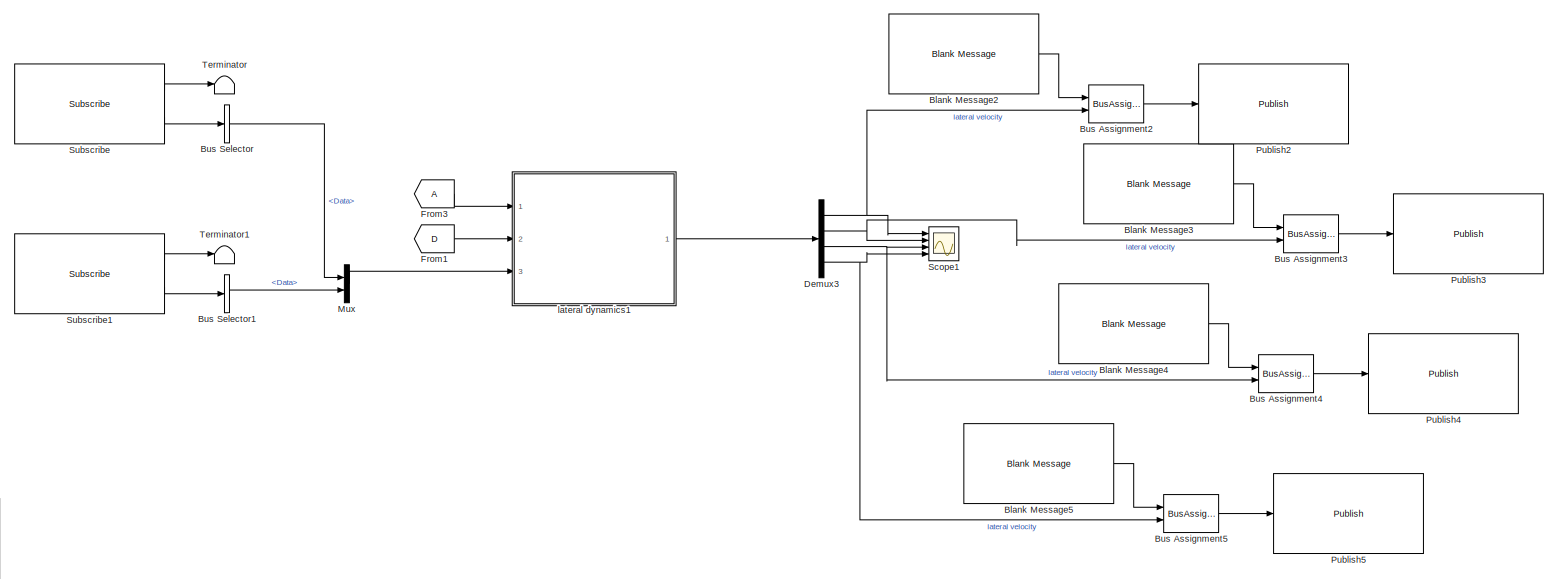
[diagram: root canvas - part 1/3, top right region]
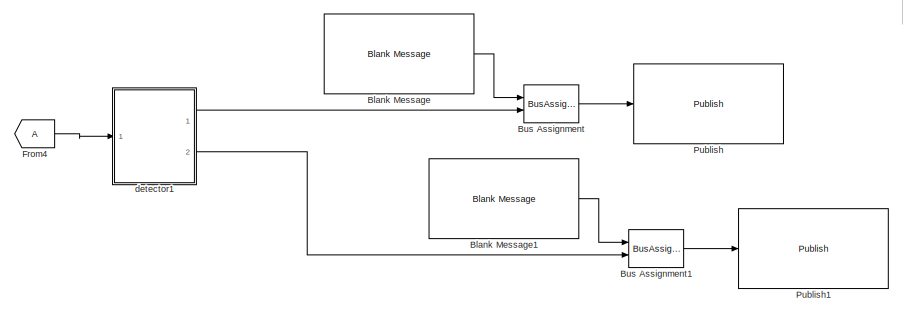
[diagram: root canvas - part 2/3, middle left region]
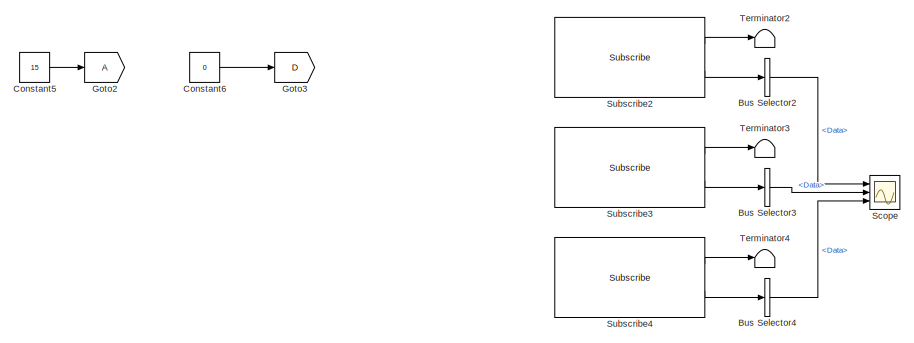
[diagram: root canvas - part 3/3, bottom center region]
MODEL slx_624ff0b0fc68
KIND model
CONFIG AbsTol = auto
CONFIG EnableMultiTasking = off
CONFIG FixedStep = auto
CONFIG MaxStep = auto
CONFIG MinStep = auto
CONFIG RelTol = 1e-3
CONFIG SampleTimeConstraint = Unconstrained
CONFIG SolverName = VariableStepAuto
CONFIG StartTime = 0.0
CONFIG StopTime = 20
BLOCK [Reference] Blank Message  REF=robotlib/Blank Message
  Ports = [0, 1]
  SourceBlock = robotlib/Blank Message
  SourceProductBaseCode = RR
  SourceType = ROS Blank Message
BLOCK [Reference] Blank Message1  REF=robotlib/Blank Message
  Ports = [0, 1]
  SourceBlock = robotlib/Blank Message
  SourceProductBaseCode = RR
  SourceType = ROS Blank Message
BLOCK [Reference] Blank Message2  REF=robotlib/Blank Message
  Ports = [0, 1]
  SourceBlock = robotlib/Blank Message
  SourceProductBaseCode = RR
  SourceType = ROS Blank Message
BLOCK [Reference] Blank Message3  REF=robotlib/Blank Message
  Ports = [0, 1]
  SourceBlock = robotlib/Blank Message
  SourceProductBaseCode = RR
  SourceType = ROS Blank Message
BLOCK [Reference] Blank Message4  REF=robotlib/Blank Message
  Ports = [0, 1]
  SourceBlock = robotlib/Blank Message
  SourceProductBaseCode = RR
  SourceType = ROS Blank Message
BLOCK [Reference] Blank Message5  REF=robotlib/Blank Message
  Ports = [0, 1]
  SourceBlock = robotlib/Blank Message
  SourceProductBaseCode = RR
  SourceType = ROS Blank Message
BLOCK [BusAssignment] Bus Assignment
  AssignedSignals = Data
  Ports = [2, 1]
BLOCK [BusAssignment] Bus Assignment1
  AssignedSignals = Data
  Ports = [2, 1]
BLOCK [BusAssignment] Bus Assignment2
  AssignedSignals = Data
  Ports = [2, 1]
BLOCK [BusAssignment] Bus Assignment3
  AssignedSignals = Data
  Ports = [2, 1]
BLOCK [BusAssignment] Bus Assignment4
  AssignedSignals = Data
  Ports = [2, 1]
BLOCK [BusAssignment] Bus Assignment5
  AssignedSignals = Data
  Ports = [2, 1]
BLOCK [BusSelector] Bus Selector
  OutputSignals = Data
  Ports = [1, 1]
BLOCK [BusSelector] Bus Selector1
  OutputSignals = Data
  Ports = [1, 1]
BLOCK [BusSelector] Bus Selector2
  OutputSignals = Data
  Ports = [1, 1]
BLOCK [BusSelector] Bus Selector3
  OutputSignals = Data
  Ports = [1, 1]
BLOCK [BusSelector] Bus Selector4
  OutputSignals = Data
  Ports = [1, 1]
BLOCK [Constant] Constant5
  Value = 15
BLOCK [Constant] Constant6
  Value = 0
BLOCK [Demux] Demux3
  Ports = [1, 4]
BLOCK [From] From1
  GotoTag = D
BLOCK [From] From3
BLOCK [From] From4
BLOCK [Goto] Goto2
BLOCK [Goto] Goto3
  GotoTag = D
BLOCK [Mux] Mux
  DisplayOption = bar
  Inputs = 2
  Ports = [2, 1]
BLOCK [Reference] Publish  REF=robotlib/Publish
  Ports = [1]
  SourceBlock = robotlib/Publish
  SourceProductBaseCode = RR
  SourceType = ROS Publish
BLOCK [Reference] Publish1  REF=robotlib/Publish
  Ports = [1]
  SourceBlock = robotlib/Publish
  SourceProductBaseCode = RR
  SourceType = ROS Publish
BLOCK [Reference] Publish2  REF=robotlib/Publish
  Ports = [1]
  SourceBlock = robotlib/Publish
  SourceProductBaseCode = RR
  SourceType = ROS Publish
BLOCK [Reference] Publish3  REF=robotlib/Publish
  Ports = [1]
  SourceBlock = robotlib/Publish
  SourceProductBaseCode = RR
  SourceType = ROS Publish
BLOCK [Reference] Publish4  REF=robotlib/Publish
  Ports = [1]
  SourceBlock = robotlib/Publish
  SourceProductBaseCode = RR
  SourceType = ROS Publish
BLOCK [Reference] Publish5  REF=robotlib/Publish
  Ports = [1]
  SourceBlock = robotlib/Publish
  SourceProductBaseCode = RR
  SourceType = ROS Publish
BLOCK [Scope] Scope
  Floating = off
  NumInputPorts = 3
  Ports = [3]
  ScopeSpecificationString = Simulink.scopes.TimeScopeBlockCfg('CurrentConfiguration', extmgr.ConfigurationSet(extmgr.Configuration('Core','General UI',true),extmgr.Configuration('Core','Source UI',true),extmgr.Configuration('Sources','WiredSimulink',true,'DataLoggingVariableName','ScopeData2'),extmgr.Configuration('Visuals','Time Domain',true),extmgr.Configuration('Tools','Plot Navigation',true),extmgr.Configuration('Tools',...<+40ch>
BLOCK [Scope] Scope1
  Floating = off
  NumInputPorts = 4
  Ports = [4]
  ScopeSpecificationString = Simulink.scopes.TimeScopeBlockCfg('CurrentConfiguration', extmgr.ConfigurationSet(extmgr.Configuration('Core','General UI',true),extmgr.Configuration('Core','Source UI',true),extmgr.Configuration('Sources','WiredSimulink',true,'DataLoggingVariableName','ScopeData1'),extmgr.Configuration('Visuals','Time Domain',true,'SerializedDisplays',{struct('MinYLimReal','-0.09959','MaxYLimReal','0.06896','YLab...<+3494ch>
BLOCK [Reference] Subscribe  REF=robotlib/Subscribe
  Ports = [0, 2]
  SourceBlock = robotlib/Subscribe
  SourceProductBaseCode = RR
  SourceType = ROS Subscribe
BLOCK [Reference] Subscribe1  REF=robotlib/Subscribe
  Ports = [0, 2]
  SourceBlock = robotlib/Subscribe
  SourceProductBaseCode = RR
  SourceType = ROS Subscribe
BLOCK [Reference] Subscribe2  REF=robotlib/Subscribe
  Ports = [0, 2]
  SourceBlock = robotlib/Subscribe
  SourceProductBaseCode = RR
  SourceType = ROS Subscribe
BLOCK [Reference] Subscribe3  REF=robotlib/Subscribe
  Ports = [0, 2]
  SourceBlock = robotlib/Subscribe
  SourceProductBaseCode = RR
  SourceType = ROS Subscribe
BLOCK [Reference] Subscribe4  REF=robotlib/Subscribe
  Ports = [0, 2]
  SourceBlock = robotlib/Subscribe
  SourceProductBaseCode = RR
  SourceType = ROS Subscribe
BLOCK [Terminator] Terminator
BLOCK [Terminator] Terminator1
BLOCK [Terminator] Terminator2
BLOCK [Terminator] Terminator3
BLOCK [Terminator] Terminator4
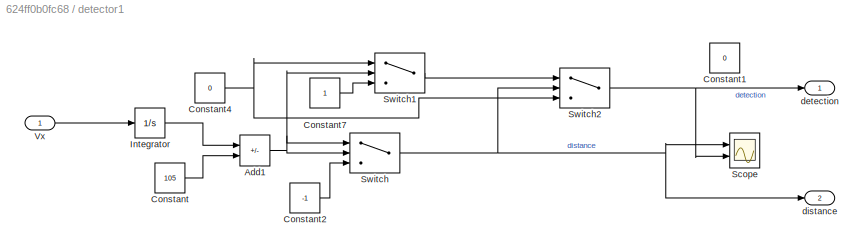
BLOCK [SubSystem] detector1
  Ports = [1, 2]
  RequestExecContextInheritance = off
BLOCK [Sum] detector1/Add1
  IconShape = rectangular
  Inputs = -+
  Ports = [2, 1]
BLOCK [Constant] detector1/Constant
  Value = 105
BLOCK [Constant] detector1/Constant1
  Commented = on
  Value = 0
BLOCK [Constant] detector1/Constant2
  Value = -1
BLOCK [Constant] detector1/Constant4
  Value = 0
BLOCK [Constant] detector1/Constant7
BLOCK [Integrator] detector1/Integrator
  Ports = [1, 1]
BLOCK [Scope] detector1/Scope
  Floating = off
  NumInputPorts = 2
  Ports = [2]
  ScopeSpecificationString = Simulink.scopes.TimeScopeBlockCfg('CurrentConfiguration', extmgr.ConfigurationSet(extmgr.Configuration('Core','General UI',true),extmgr.Configuration('Core','Source UI',true),extmgr.Configuration('Sources','WiredSimulink',true),extmgr.Configuration('Visuals','Time Domain',true,'SerializedDisplays',{struct('MinYLimReal','-0.125','MaxYLimReal','1.125','YLabelReal','','MinYLimMag','0.00000','MaxYLimM...<+1985ch>
BLOCK [Switch] detector1/Switch
  Criteria = u2 > Threshold
  InputSameDT = off
  SaturateOnIntegerOverflow = off
BLOCK [Switch] detector1/Switch1
  Criteria = u2 > Threshold
  InputSameDT = off
  SaturateOnIntegerOverflow = off
  Threshold = 45
BLOCK [Switch] detector1/Switch2
  Criteria = u2 > Threshold
  InputSameDT = off
  SaturateOnIntegerOverflow = off
BLOCK [Inport] detector1/Vx
BLOCK [Outport] detector1/detection
BLOCK [Outport] detector1/distance
  Port = 2
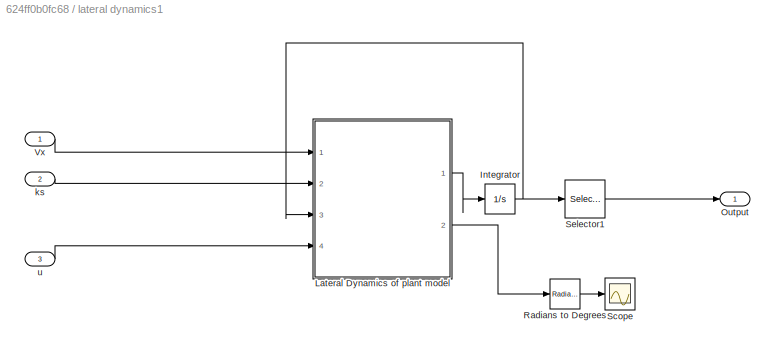
BLOCK [SubSystem] lateral dynamics1
  Ports = [3, 1]
  RequestExecContextInheritance = off
BLOCK [Integrator] lateral dynamics1/Integrator
  Ports = [1, 1]
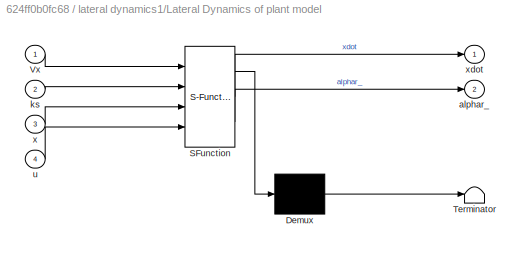
BLOCK [SubSystem] lateral dynamics1/Lateral Dynamics of plant model
  ErrorFcn = Stateflow.Translate.translate
  PermitHierarchicalResolution = ExplicitOnly
  Ports = [4, 2]
  RequestExecContextInheritance = off
  SFBlockType = MATLAB Function
  TreatAsAtomicUnit = on
BLOCK [Demux] lateral dynamics1/Lateral Dynamics of plant model/ Demux 
  Outputs = 1
  Ports = [1, 1]
BLOCK [S-Function] lateral dynamics1/Lateral Dynamics of plant model/ SFunction 
  EnableBusSupport = on
  FunctionName = sf_sfun
  PortCounts = [4 3]
  Ports = [4, 3]
  SFcnIsStateOwnerBlock = off
  SFunctionDeploymentMode = off
  Tag = Stateflow S-Function 3
BLOCK [Terminator] lateral dynamics1/Lateral Dynamics of plant model/ Terminator 
BLOCK [Inport] lateral dynamics1/Lateral Dynamics of plant model/Vx
BLOCK [Outport] lateral dynamics1/Lateral Dynamics of plant model/alphar_
  Port = 2
BLOCK [Inport] lateral dynamics1/Lateral Dynamics of plant model/ks
  Port = 2
BLOCK [Inport] lateral dynamics1/Lateral Dynamics of plant model/u
  Port = 4
BLOCK [Inport] lateral dynamics1/Lateral Dynamics of plant model/x
  Port = 3
BLOCK [Outport] lateral dynamics1/Lateral Dynamics of plant model/xdot
BLOCK [Outport] lateral dynamics1/Output
BLOCK [Reference] lateral dynamics1/Radians to Degrees  REF=simulink_extras/Transformations/Radians
to Degrees
  Ports = [1, 1]
  SourceBlock = simulink_extras/Transformations/Radians\nto Degrees
  SourceProductBaseCode = SL
  SourceType = RadiansToDegrees
BLOCK [Scope] lateral dynamics1/Scope
  Floating = off
  NumInputPorts = 1
  Ports = [1]
  ScopeSpecificationString = Simulink.scopes.TimeScopeBlockCfg('CurrentConfiguration', extmgr.ConfigurationSet(extmgr.Configuration('Core','General UI',true),extmgr.Configuration('Core','Source UI',true),extmgr.Configuration('Sources','WiredSimulink',true,'DataLoggingVariableName','ScopeData1'),extmgr.Configuration('Visuals','Time Domain',true,'SerializedDisplays',{struct('MinYLimReal','-0.89178','MaxYLimReal','0.67452','YLab...<+1377ch>
BLOCK [Selector] lateral dynamics1/Selector1
  IndexOptions = Index vector (dialog)
  Indices = [1 2 3 4]
  InputPortWidth = 4
  OutputSizes = 1
  Ports = [1, 1]
BLOCK [Inport] lateral dynamics1/Vx
BLOCK [Inport] lateral dynamics1/ks
  Port = 2
BLOCK [Inport] lateral dynamics1/u
  Port = 3
LINE Blank Message1:1 -> Bus Assignment1:1
LINE Blank Message2:1 -> Bus Assignment2:1
LINE Blank Message3:1 -> Bus Assignment3:1
LINE Blank Message4:1 -> Bus Assignment4:1
LINE Blank Message5:1 -> Bus Assignment5:1
LINE Blank Message:1 -> Bus Assignment:1
LINE Bus Assignment1:1 -> Publish1:1
LINE Bus Assignment2:1 -> Publish2:1
LINE Bus Assignment3:1 -> Publish3:1
LINE Bus Assignment4:1 -> Publish4:1
LINE Bus Assignment5:1 -> Publish5:1
LINE Bus Assignment:1 -> Publish:1
LINE Bus Selector1:1 -> Mux:2
LINE Bus Selector2:1 -> Scope:1
LINE Bus Selector3:1 -> Scope:2
LINE Bus Selector4:1 -> Scope:3
LINE Bus Selector:1 -> Mux:1
LINE Constant5:1 -> Goto2:1
LINE Constant6:1 -> Goto3:1
NET Demux3:1 -> Bus Assignment2:2, Scope1:1
NET Demux3:2 -> Bus Assignment3:2, Scope1:2
NET Demux3:3 -> Bus Assignment4:2, Scope1:3
NET Demux3:4 -> Bus Assignment5:2, Scope1:4
LINE From1:1 -> lateral dynamics1:2
LINE From3:1 -> lateral dynamics1:1
LINE From4:1 -> detector1:1
LINE Mux:1 -> lateral dynamics1:3
LINE Subscribe1:1 -> Terminator1:1
LINE Subscribe1:2 -> Bus Selector1:1
LINE Subscribe2:1 -> Terminator2:1
LINE Subscribe2:2 -> Bus Selector2:1
LINE Subscribe3:1 -> Terminator3:1
LINE Subscribe3:2 -> Bus Selector3:1
LINE Subscribe4:1 -> Terminator4:1
LINE Subscribe4:2 -> Bus Selector4:1
LINE Subscribe:1 -> Terminator:1
LINE Subscribe:2 -> Bus Selector:1
NET detector1/Add1:1 -> detector1/Switch1:2, detector1/Switch:1, detector1/Switch:2
LINE detector1/Constant2:1 -> detector1/Switch:3
NET detector1/Constant4:1 -> detector1/Switch1:1, detector1/Switch2:3
LINE detector1/Constant7:1 -> detector1/Switch1:3
LINE detector1/Constant:1 -> detector1/Add1:2
LINE detector1/Integrator:1 -> detector1/Add1:1
LINE detector1/Switch1:1 -> detector1/Switch2:1
NET detector1/Switch2:1 -> detector1/Scope:2, detector1/detection:1
NET detector1/Switch:1 -> detector1/Scope:1, detector1/Switch2:2, detector1/distance:1
LINE detector1/Vx:1 -> detector1/Integrator:1
LINE detector1:1 -> Bus Assignment:2
LINE detector1:2 -> Bus Assignment1:2
NET lateral dynamics1/Integrator:1 -> lateral dynamics1/Lateral Dynamics of plant model:3, lateral dynamics1/Selector1:1
LINE lateral dynamics1/Lateral Dynamics of plant model:1 -> lateral dynamics1/Integrator:1
LINE lateral dynamics1/Lateral Dynamics of plant model:2 -> lateral dynamics1/Radians to Degrees:1
LINE lateral dynamics1/Radians to Degrees:1 -> lateral dynamics1/Scope:1
LINE lateral dynamics1/Selector1:1 -> lateral dynamics1/Output:1
LINE lateral dynamics1/Vx:1 -> lateral dynamics1/Lateral Dynamics of plant model:1
LINE lateral dynamics1/ks:1 -> lateral dynamics1/Lateral Dynamics of plant model:2
LINE lateral dynamics1/u:1 -> lateral dynamics1/Lateral Dynamics of plant model:4
LINE lateral dynamics1:1 -> Demux3:1
note: NET lines group one-source signal fan-out (src -> all destinations, sorted); 1:1 wires keep LINE
CHART lateral dynamics1/Lateral Dynamics of plant model states=1 transitions=1
  STATE_LABEL 'eML_blk_kernel()'
  STATE_LABEL 'SCRIPT:\nfunction [xdot,alphar_] = fcn(Vx,ks, x, u)\n\n%Plant Model parameters\nm = 2272;   %mass\nIz = 4600;  %rotational inertia\nlf = 1.11;  % distance from front axle to the mass center\nlr = 1.67;  % distance from rear axle to the mass center\nC_a = 1.822e5; % rear cornering stifness \n\n%Enviroment parameters\nmiu = 0.7; %frction cooeficient 0.7 for dry road and 0.4 for wet\ng = 9.81; % gravity\n\nFz = m*...<+1071ch>'
CHART  states=0 transitions=0
